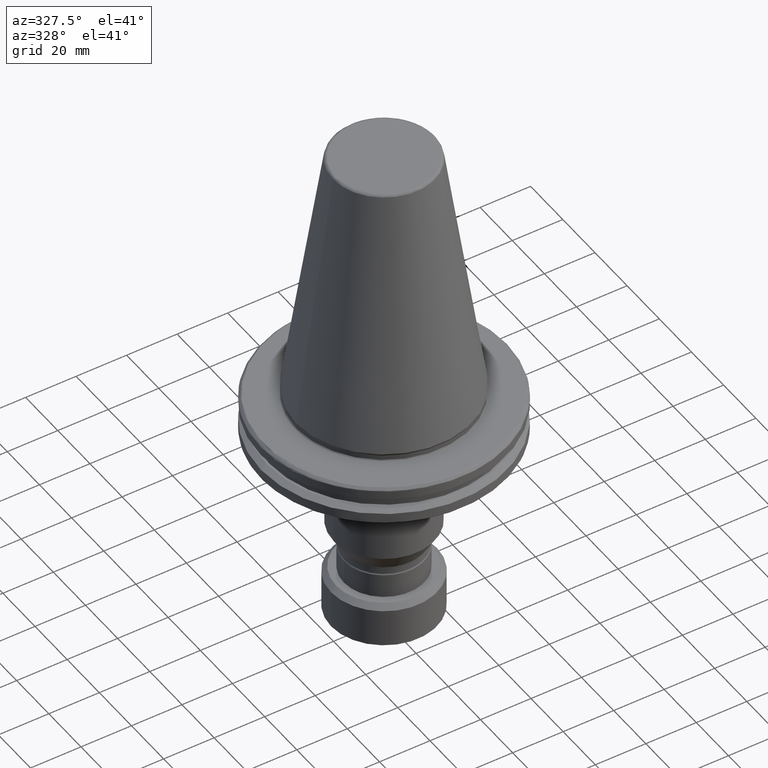
[diagram: clean part render]
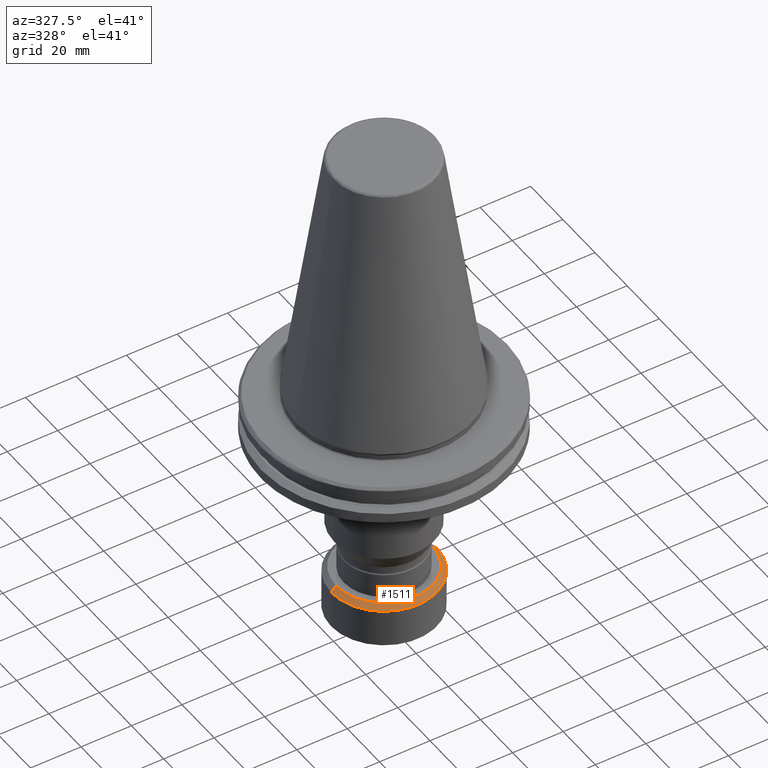
[diagram: same view with one face highlighted and labeled with its STEP entity id]
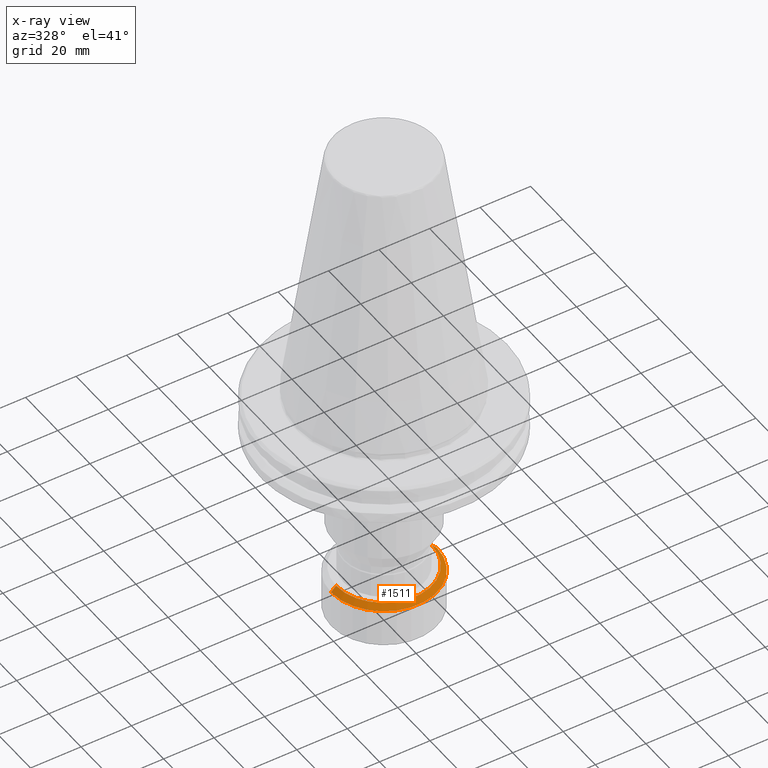
[diagram: x-ray of the same camera — body ghosted, the highlighted face saturated]
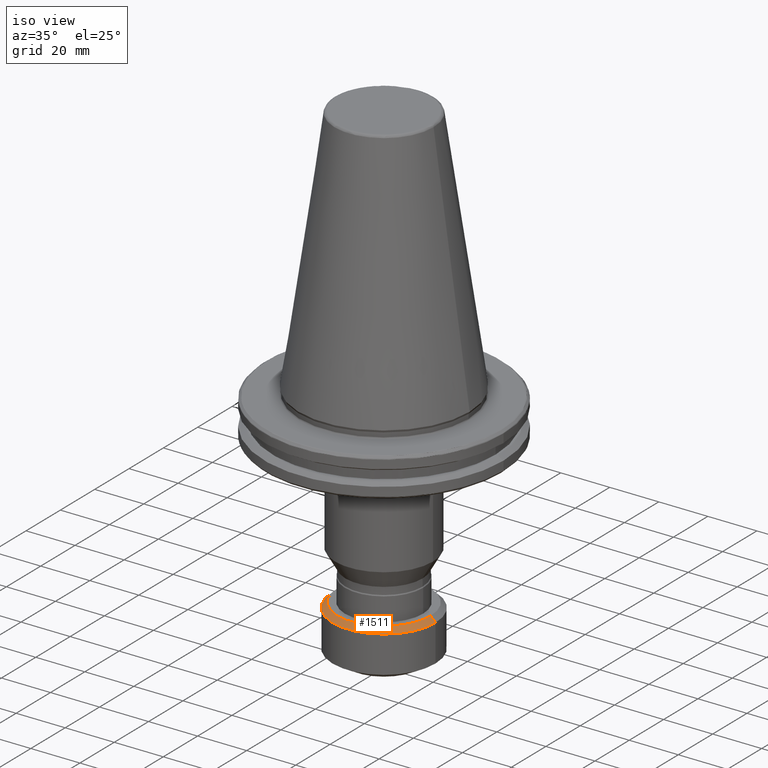
[diagram: same view with one face highlighted and labeled with its STEP entity id]
A machine part, auxiliary view. The second image highlights one B-rep face of the part: STEP entity #1511.
The next image is the same camera in x-ray: the body ghosted, the highlighted face saturated — about 0% of this face is hidden behind the body in this view.
A second angle (iso view) of the same face is appended — the face is thin or edge-on in the first view.
In plain terms, the highlighted conical surface has half-angle 45 deg.
Its self-contained STEP definition (entity closure, byte-faithful):
#2 = CARTESIAN_POINT ( 'NONE',  ( 0.0000000000000000000, 0.0000000000000000000, -81.50000000000001400 ) ) ;
#90 = ORIENTED_EDGE ( 'NONE', *, *, #1095, .T. ) ;
#241 = VERTEX_POINT ( 'NONE', #3271 ) ;
#254 = EDGE_CURVE ( 'NONE', #2521, #894, #1397, .T. ) ;
#265 = DIRECTION ( 'NONE',  ( -1.000000000000000000, 0.0000000000000000000, 0.0000000000000000000 ) ) ;
#324 = DIRECTION ( 'NONE',  ( -1.000000000000000000, 0.0000000000000000000, 0.0000000000000000000 ) ) ;
#359 = CARTESIAN_POINT ( 'NONE',  ( -19.00000000000000000, 0.0000000000000000000, -79.50000000000001400 ) ) ;
#486 = AXIS2_PLACEMENT_3D ( 'NONE', #1436, #2233, #324 ) ;
#528 = DIRECTION ( 'NONE',  ( 0.7071067811865474600, 8.659560562354931600E-017, -0.7071067811865475700 ) ) ;
#542 = LINE ( 'NONE', #2157, #1285 ) ;
#545 = ORIENTED_EDGE ( 'NONE', *, *, #254, .T. ) ;
#625 = DIRECTION ( 'NONE',  ( -1.000000000000000000, 0.0000000000000000000, 0.0000000000000000000 ) ) ;
#691 = VECTOR ( 'NONE', #1716, 1000.000000000000000 ) ;
#894 = VERTEX_POINT ( 'NONE', #359 ) ;
#945 = EDGE_CURVE ( 'NONE', #2521, #241, #542, .T. ) ;
#1095 = EDGE_CURVE ( 'NONE', #894, #1465, #3408, .T. ) ;
#1174 = CARTESIAN_POINT ( 'NONE',  ( 19.00000000000000000, 2.449293598294706500E-015, -79.50000000000001400 ) ) ;
#1285 = VECTOR ( 'NONE', #528, 1000.000000000000000 ) ;
#1397 = CIRCLE ( 'NONE', #2360, 19.00000000000000000 ) ;
#1435 = CARTESIAN_POINT ( 'NONE',  ( -21.00000000000000000, 0.0000000000000000000, -81.50000000000001400 ) ) ;
#1436 = CARTESIAN_POINT ( 'NONE',  ( 0.0000000000000000000, 0.0000000000000000000, -81.50000000000001400 ) ) ;
#1445 = DIRECTION ( 'NONE',  ( 0.0000000000000000000, 0.0000000000000000000, -1.000000000000000000 ) ) ;
#1465 = VERTEX_POINT ( 'NONE', #1680 ) ;
#1511 = ADVANCED_FACE ( 'NONE', ( #2585 ), #1515, .T. ) ;
#1515 = CONICAL_SURFACE ( 'NONE', #486, 21.00000000000000000, 0.7853981633974482800 ) ;
#1546 = ORIENTED_EDGE ( 'NONE', *, *, #1611, .T. ) ;
#1611 = EDGE_CURVE ( 'NONE', #1465, #241, #3059, .T. ) ;
#1680 = CARTESIAN_POINT ( 'NONE',  ( -21.00000000000000000, 2.571758278209442100E-015, -81.50000000000001400 ) ) ;
#1716 = DIRECTION ( 'NONE',  ( -0.7071067811865474600, 0.0000000000000000000, -0.7071067811865475700 ) ) ;
#1761 = CARTESIAN_POINT ( 'NONE',  ( 0.0000000000000000000, 0.0000000000000000000, -79.50000000000001400 ) ) ;
#1909 = DIRECTION ( 'NONE',  ( -0.0000000000000000000, -0.0000000000000000000, 1.000000000000000000 ) ) ;
#2157 = CARTESIAN_POINT ( 'NONE',  ( 21.00000000000000000, 2.571758278209441700E-015, -81.50000000000001400 ) ) ;
#2233 = DIRECTION ( 'NONE',  ( 0.0000000000000000000, 0.0000000000000000000, -1.000000000000000000 ) ) ;
#2360 = AXIS2_PLACEMENT_3D ( 'NONE', #1761, #1445, #625 ) ;
#2521 = VERTEX_POINT ( 'NONE', #1174 ) ;
#2585 = FACE_OUTER_BOUND ( 'NONE', #2873, .T. ) ;
#2705 = AXIS2_PLACEMENT_3D ( 'NONE', #2, #1909, #265 ) ;
#2873 = EDGE_LOOP ( 'NONE', ( #3018, #545, #90, #1546 ) ) ;
#3018 = ORIENTED_EDGE ( 'NONE', *, *, #945, .F. ) ;
#3059 = CIRCLE ( 'NONE', #2705, 20.99999999999999600 ) ;
#3271 = CARTESIAN_POINT ( 'NONE',  ( 21.00000000000000000, 0.0000000000000000000, -81.50000000000001400 ) ) ;
#3408 = LINE ( 'NONE', #1435, #691 ) ;